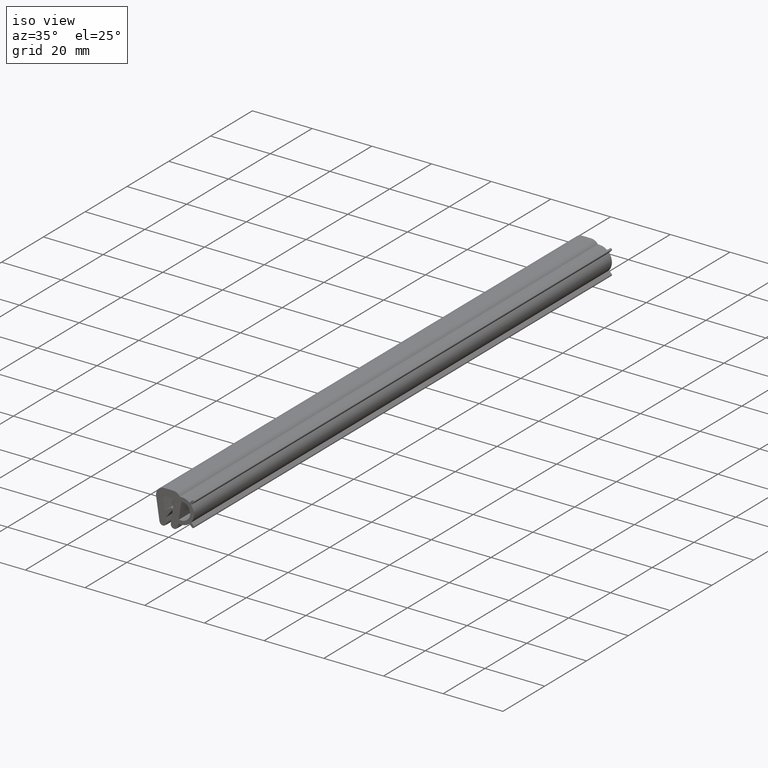
[diagram: clean part render]
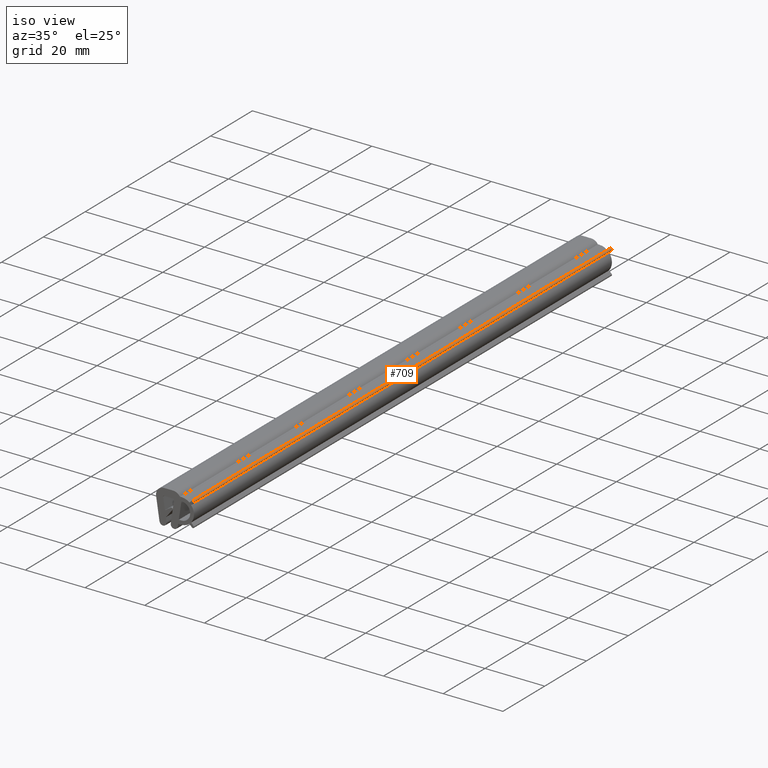
[diagram: same view with one face highlighted and labeled with its STEP entity id]
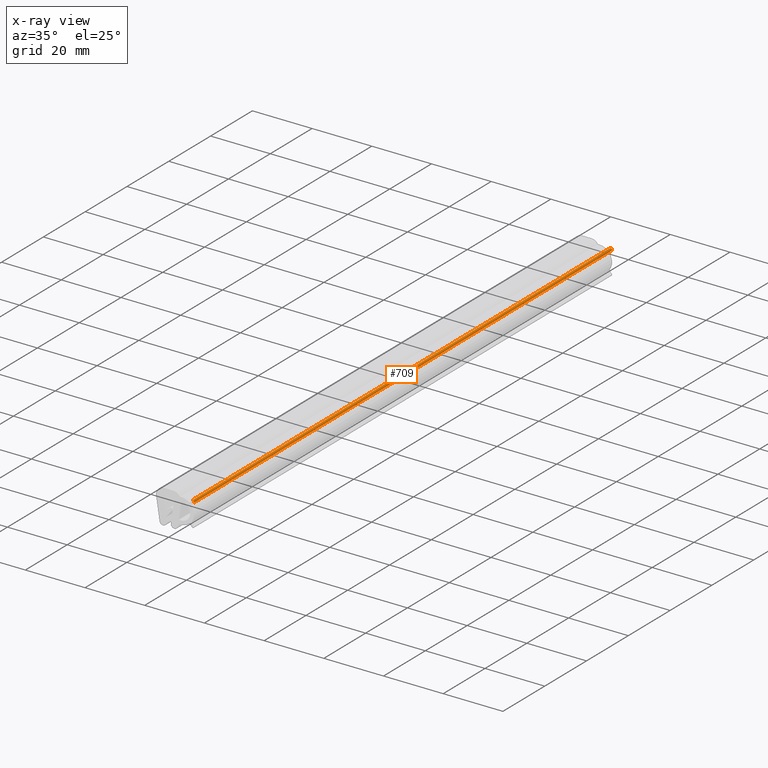
[diagram: x-ray of the same camera — body ghosted, the highlighted face saturated]
A machine part, iso view. The second image highlights one B-rep face of the part: STEP entity #709.
The next image is the same camera in x-ray: the body ghosted, the highlighted face saturated — about 0% of this face is hidden behind the body in this view.
In plain terms, the highlighted face is a freeform B-spline surface patch.
Its self-contained STEP definition (entity closure, byte-faithful):
#66=CARTESIAN_POINT('',(8.387719949718450,0.0,-1.877320786537310));
#67=VERTEX_POINT('',#66);
#73=CARTESIAN_POINT('',(7.822034524770510,0.0,-1.311635361589216));
#74=VERTEX_POINT('',#73);
#75=CARTESIAN_POINT('',(8.387719949718449,0.0,-1.877320786537308));
#76=CARTESIAN_POINT('',(8.551019265903909,0.0,-1.714021470352169));
#77=CARTESIAN_POINT('',(8.491247567759555,0.0,-1.490950456022398));
#78=CARTESIAN_POINT('',(8.431475869615206,0.0,-1.267879441692627));
#79=CARTESIAN_POINT('',(8.208404855285448,0.0,-1.208107743548213));
#80=CARTESIAN_POINT('',(7.985333840955694,0.0,-1.148336045403799));
#81=CARTESIAN_POINT('',(7.822034524770510,0.0,-1.311635361589215));
#89=(BOUNDED_CURVE()B_SPLINE_CURVE(2,(#75,#76,#77,#78,#79,#80,#81),.UNSPECIFIED.,.F.,.U.)B_SPLINE_CURVE_WITH_KNOTS((3,2,2,3),(0.0,0.333333333333333,0.666666666666667,1.0),.UNSPECIFIED.)CURVE()GEOMETRIC_REPRESENTATION_ITEM()RATIONAL_B_SPLINE_CURVE((1.0,0.866025403784296,1.0,0.866025403784296,1.0,0.866025403784296,1.0))REPRESENTATION_ITEM(''));
#90=EDGE_CURVE('',#67,#74,#89,.T.);
#382=CARTESIAN_POINT('',(7.822034524770510,200.0,-1.311635361589216));
#383=VERTEX_POINT('',#382);
#389=CARTESIAN_POINT('',(8.387719949718450,200.0,-1.877320786537310));
#390=VERTEX_POINT('',#389);
#391=CARTESIAN_POINT('',(8.387719949718449,200.0,-1.877320786537308));
#392=CARTESIAN_POINT('',(8.551019265903909,200.0,-1.714021470352169));
#393=CARTESIAN_POINT('',(8.491247567759555,200.0,-1.490950456022398));
#394=CARTESIAN_POINT('',(8.431475869615206,200.0,-1.267879441692627));
#395=CARTESIAN_POINT('',(8.208404855285448,200.0,-1.208107743548213));
#396=CARTESIAN_POINT('',(7.985333840955694,200.0,-1.148336045403799));
#397=CARTESIAN_POINT('',(7.822034524770510,200.0,-1.311635361589215));
#405=(BOUNDED_CURVE()B_SPLINE_CURVE(2,(#391,#392,#393,#394,#395,#396,#397),.UNSPECIFIED.,.F.,.U.)B_SPLINE_CURVE_WITH_KNOTS((3,2,2,3),(0.0,0.333333333333333,0.666666666666667,1.0),.UNSPECIFIED.)CURVE()GEOMETRIC_REPRESENTATION_ITEM()RATIONAL_B_SPLINE_CURVE((1.0,0.866025403784296,1.0,0.866025403784296,1.0,0.866025403784296,1.0))REPRESENTATION_ITEM(''));
#406=EDGE_CURVE('',#390,#383,#405,.T.);
#671=CARTESIAN_POINT('',(7.822034524770510,200.0,-1.311635361589216));
#672=CARTESIAN_POINT('',(7.822034524770510,0.0,-1.311635361589216));
#673=QUASI_UNIFORM_CURVE('',1,(#671,#672),.UNSPECIFIED.,.F.,.U.);
#674=EDGE_CURVE('',#383,#74,#673,.T.);
#681=CARTESIAN_POINT('',(7.814727488840704,205.0,-1.319136243785827));
#682=CARTESIAN_POINT('',(7.814727488840704,-5.125000000000000,-1.319136243785827));
#683=CARTESIAN_POINT('',(8.104877237245294,205.000000000000030,-1.013382205562404));
#684=CARTESIAN_POINT('',(8.104877237245294,-5.124999999999999,-1.013382205562404));
#685=CARTESIAN_POINT('',(8.395026985649281,205.0,-1.319136243786399));
#686=CARTESIAN_POINT('',(8.395026985649281,-5.125000000000000,-1.319136243786399));
#687=CARTESIAN_POINT('',(8.685176734053268,205.000000000000030,-1.624890282010398));
#688=CARTESIAN_POINT('',(8.685176734053268,-5.124999999999999,-1.624890282010398));
#689=CARTESIAN_POINT('',(8.364656456575933,205.0,-1.898640460302633));
#690=CARTESIAN_POINT('',(8.364656456575933,-5.125000000000000,-1.898640460302633));
#698=(BOUNDED_SURFACE()B_SPLINE_SURFACE(1,2,((#681,#683,#685,#687,#689),(#682,#684,#686,#688,#690)),.UNSPECIFIED.,.F.,.F.,.U.)B_SPLINE_SURFACE_WITH_KNOTS((2,2),(3,2,3),(0.0,210.125000000000110),(0.0,1.0,2.0),.UNSPECIFIED.)GEOMETRIC_REPRESENTATION_ITEM()RATIONAL_B_SPLINE_SURFACE(((1.0,0.688354575693754,1.0,0.688354575693754,1.0),(1.0,0.688354575693754,1.0,0.688354575693754,1.0)))REPRESENTATION_ITEM('')SURFACE());
#699=ORIENTED_EDGE('',*,*,#90,.F.);
#700=CARTESIAN_POINT('',(8.387719949718450,200.0,-1.877320786537310));
#701=CARTESIAN_POINT('',(8.387719949718450,0.0,-1.877320786537310));
#702=QUASI_UNIFORM_CURVE('',1,(#700,#701),.UNSPECIFIED.,.F.,.U.);
#703=EDGE_CURVE('',#390,#67,#702,.T.);
#704=ORIENTED_EDGE('',*,*,#703,.F.);
#705=ORIENTED_EDGE('',*,*,#406,.T.);
#706=ORIENTED_EDGE('',*,*,#674,.T.);
#707=EDGE_LOOP('',(#699,#704,#705,#706));
#708=FACE_OUTER_BOUND('',#707,.T.);
#709=ADVANCED_FACE('',(#708),#698,.T.);